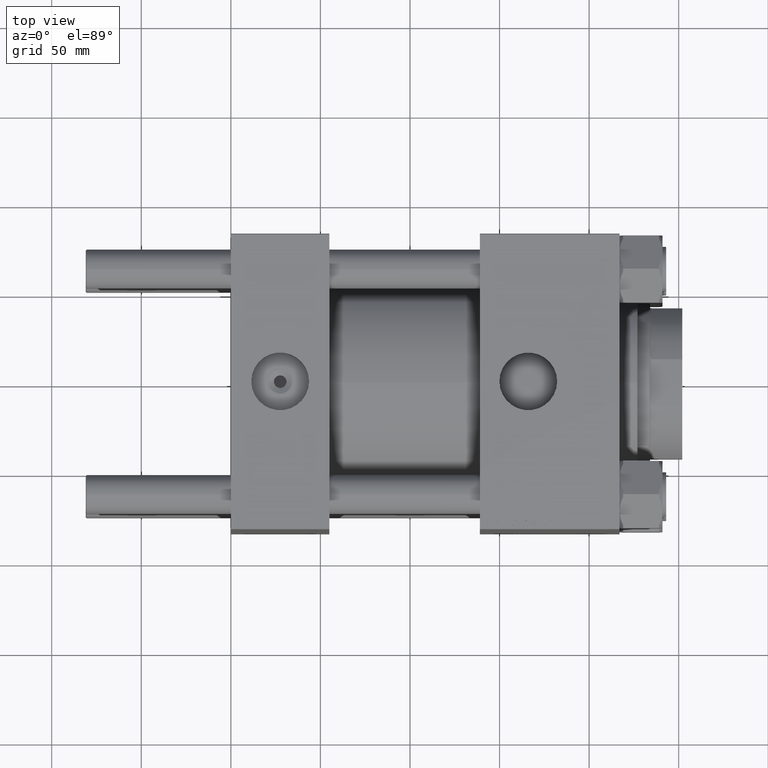
[diagram: clean part render]
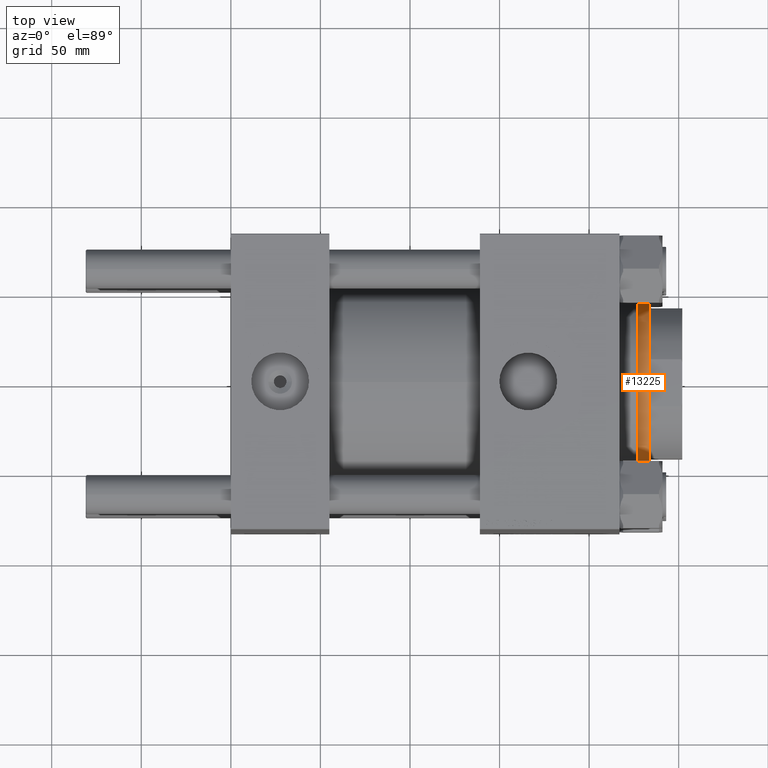
[diagram: same view with one face highlighted and labeled with its STEP entity id]
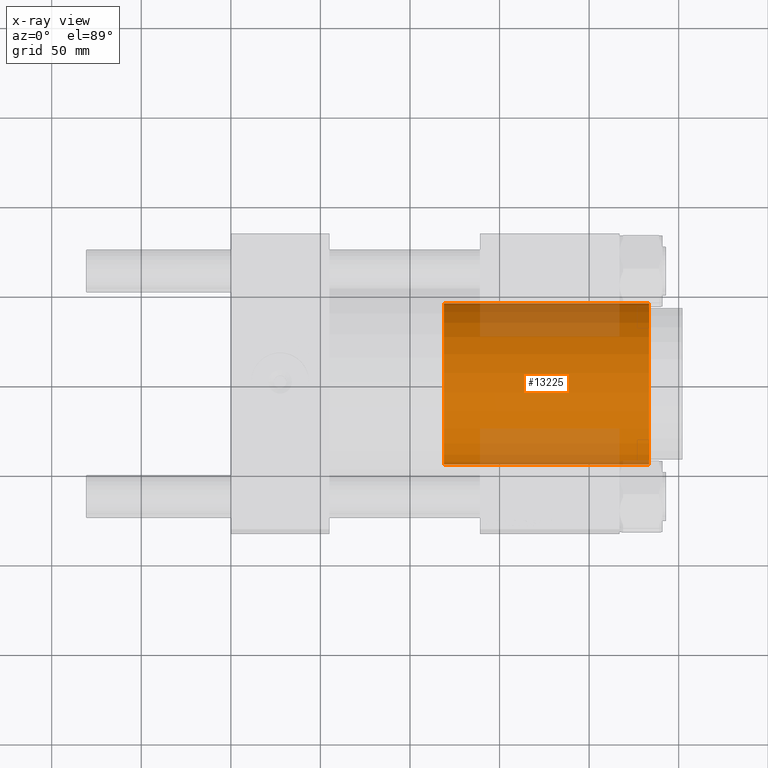
[diagram: x-ray of the same camera — body ghosted, the highlighted face saturated]
A machine part, top view. The second image highlights one B-rep face of the part: STEP entity #13225.
The next image is the same camera in x-ray: the body ghosted, the highlighted face saturated — about 30% of this face is hidden behind the body in this view.
In plain terms, the highlighted cylindrical surface (partial cylindrical patch) has radius 45 mm, axis along (-1, 0, 0).
Its self-contained STEP definition (entity closure, byte-faithful):
#474 = LINE ( 'NONE', #35572, #36914 ) ;
#2707 = DIRECTION ( 'NONE',  ( -0.000000000000000000, -0.000000000000000000, -1.000000000000000000 ) ) ;
#2845 = LINE ( 'NONE', #18363, #23868 ) ;
#3209 = CARTESIAN_POINT ( 'NONE',  ( 0.000000000000000000, 0.000000000000000000, 179.0000000000000000 ) ) ;
#3457 = FACE_OUTER_BOUND ( 'NONE', #15821, .T. ) ;
#4016 = AXIS2_PLACEMENT_3D ( 'NONE', #25906, #49042, #17547 ) ;
#6456 = EDGE_CURVE ( 'NONE', #41434, #11627, #2845, .T. ) ;
#7683 = CARTESIAN_POINT ( 'NONE',  ( 0.000000000000000000, 0.000000000000000000, 64.00000000000000000 ) ) ;
#9027 = EDGE_CURVE ( 'NONE', #23525, #11627, #46653, .T. ) ;
#9204 = CARTESIAN_POINT ( 'NONE',  ( 45.00000000000000711, 5.510910596163090344E-15, 64.00000000000000000 ) ) ;
#10308 = DIRECTION ( 'NONE',  ( 1.000000000000000000, 0.000000000000000000, 0.000000000000000000 ) ) ;
#11627 = VERTEX_POINT ( 'NONE', #9204 ) ;
#13225 = ADVANCED_FACE ( 'NONE', ( #3457 ), #30669, .T. ) ;
#15821 = EDGE_LOOP ( 'NONE', ( #28037, #24479, #40979, #49181 ) ) ;
#17547 = DIRECTION ( 'NONE',  ( 1.000000000000000000, 0.000000000000000000, 0.000000000000000000 ) ) ;
#18363 = CARTESIAN_POINT ( 'NONE',  ( 45.00000000000000711, 5.510910596163090344E-15, 179.0000000000000000 ) ) ;
#22248 = CARTESIAN_POINT ( 'NONE',  ( 45.00000000000000711, 5.510910596163090344E-15, 178.4999999999999432 ) ) ;
#23525 = VERTEX_POINT ( 'NONE', #34170 ) ;
#23868 = VECTOR ( 'NONE', #47931, 1000.000000000000000 ) ;
#24479 = ORIENTED_EDGE ( 'NONE', *, *, #33833, .T. ) ;
#25906 = CARTESIAN_POINT ( 'NONE',  ( 0.000000000000000000, 0.000000000000000000, 178.4999999999999432 ) ) ;
#28037 = ORIENTED_EDGE ( 'NONE', *, *, #6456, .F. ) ;
#30669 = CYLINDRICAL_SURFACE ( 'NONE', #45062, 45.00000000000000711 ) ;
#31850 = VERTEX_POINT ( 'NONE', #38328 ) ;
#33668 = AXIS2_PLACEMENT_3D ( 'NONE', #7683, #48946, #10308 ) ;
#33833 = EDGE_CURVE ( 'NONE', #41434, #31850, #39772, .T. ) ;
#34170 = CARTESIAN_POINT ( 'NONE',  ( -45.00000000000000711, 0.000000000000000000, 64.00000000000000000 ) ) ;
#35572 = CARTESIAN_POINT ( 'NONE',  ( -45.00000000000000711, 0.000000000000000000, 179.0000000000000000 ) ) ;
#36914 = VECTOR ( 'NONE', #42444, 1000.000000000000000 ) ;
#38328 = CARTESIAN_POINT ( 'NONE',  ( -45.00000000000000711, 0.000000000000000000, 178.4999999999999432 ) ) ;
#39772 = CIRCLE ( 'NONE', #4016, 45.00000000000000711 ) ;
#40979 = ORIENTED_EDGE ( 'NONE', *, *, #49216, .T. ) ;
#41434 = VERTEX_POINT ( 'NONE', #22248 ) ;
#42444 = DIRECTION ( 'NONE',  ( -0.000000000000000000, -0.000000000000000000, -1.000000000000000000 ) ) ;
#45062 = AXIS2_PLACEMENT_3D ( 'NONE', #3209, #2707, #50240 ) ;
#46653 = CIRCLE ( 'NONE', #33668, 45.00000000000000711 ) ;
#47931 = DIRECTION ( 'NONE',  ( -0.000000000000000000, -0.000000000000000000, -1.000000000000000000 ) ) ;
#48946 = DIRECTION ( 'NONE',  ( 0.000000000000000000, 0.000000000000000000, 1.000000000000000000 ) ) ;
#49042 = DIRECTION ( 'NONE',  ( 0.000000000000000000, 0.000000000000000000, -1.000000000000000000 ) ) ;
#49181 = ORIENTED_EDGE ( 'NONE', *, *, #9027, .T. ) ;
#49216 = EDGE_CURVE ( 'NONE', #31850, #23525, #474, .T. ) ;
#50240 = DIRECTION ( 'NONE',  ( -1.000000000000000000, 0.000000000000000000, 0.000000000000000000 ) ) ;